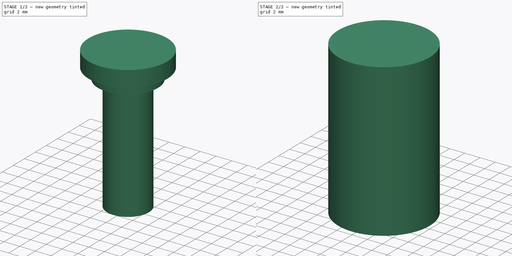
[diagram: build sequence overview — one tinted view per stage of 2, left to right]
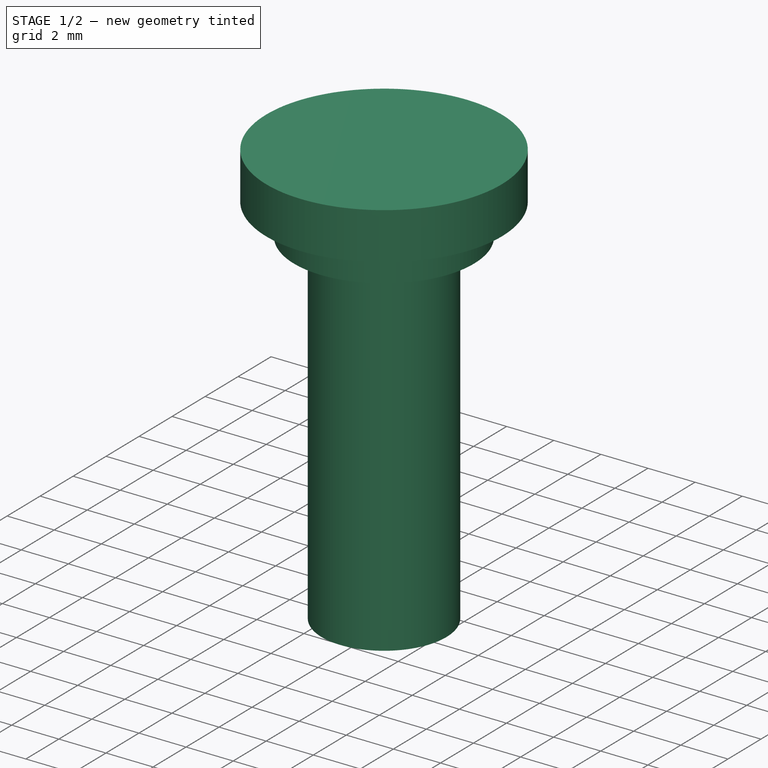
[diagram: stage 1 of 2 — iso view after this stage's code; geometry added in this stage tinted green]
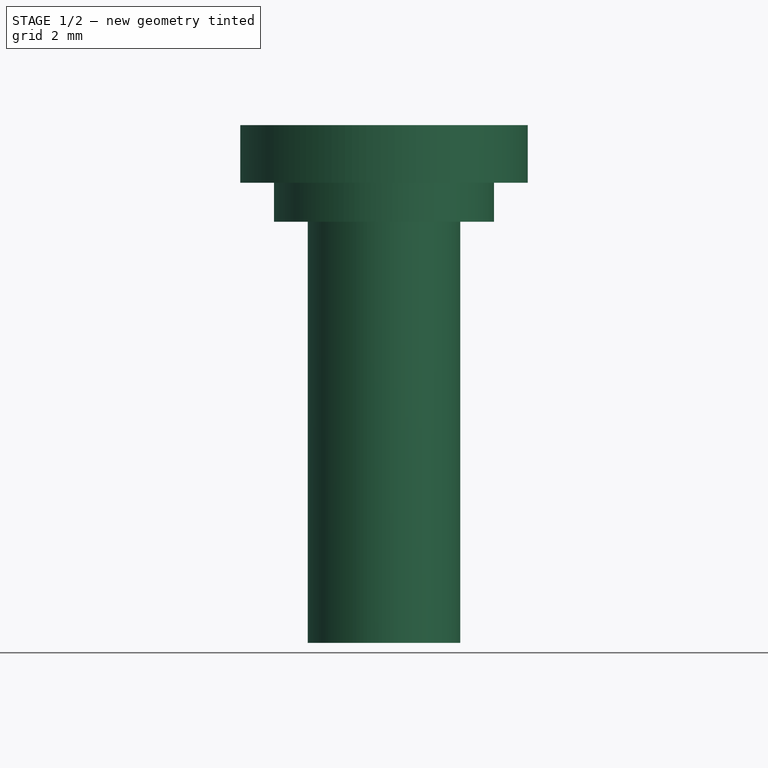
[diagram: stage 1 of 2 — front view after this stage's code; geometry added in this stage tinted green]
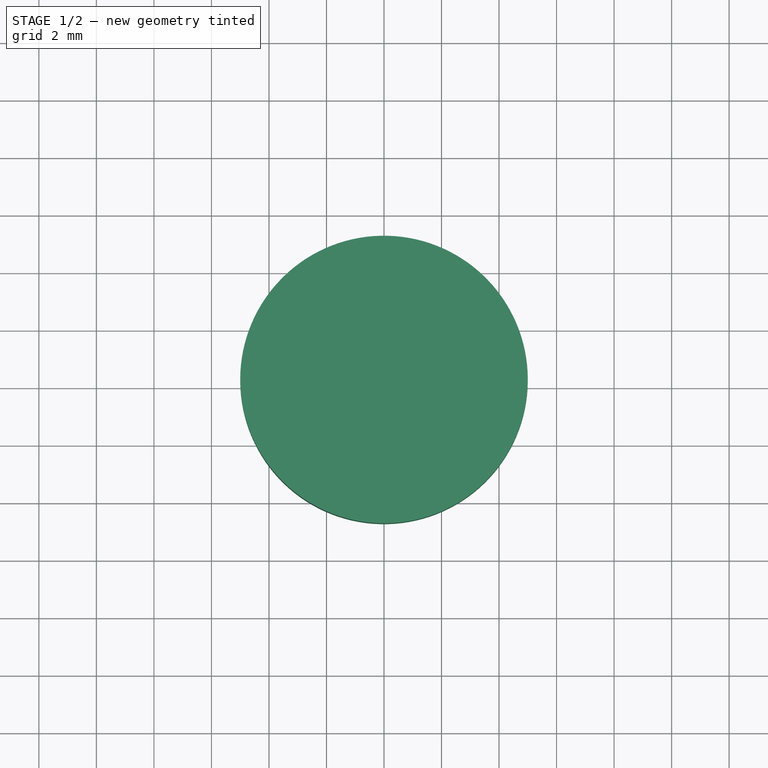
[diagram: stage 1 of 2 — top view after this stage's code; geometry added in this stage tinted green]
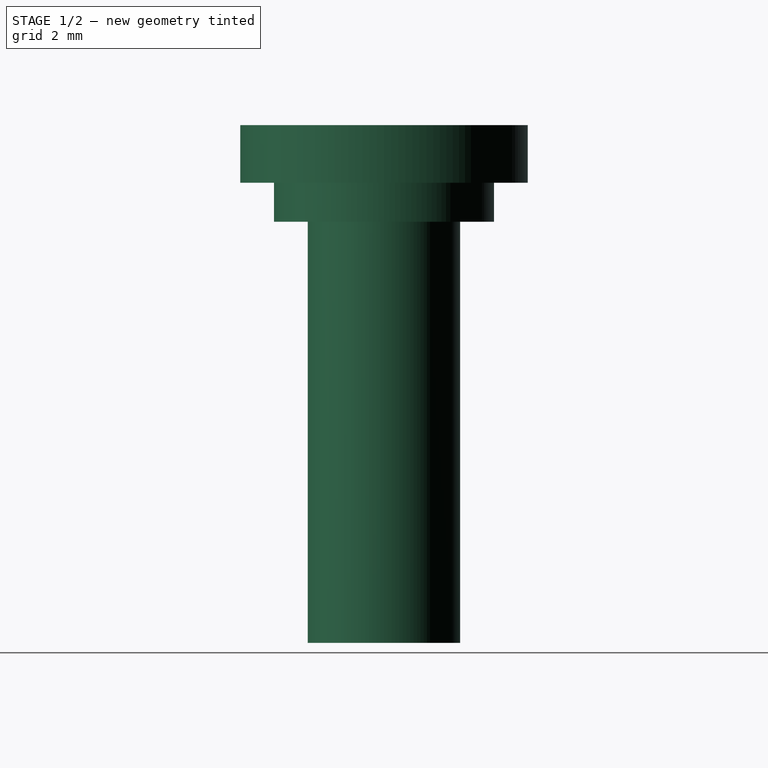
[diagram: stage 1 of 2 — right view after this stage's code; geometry added in this stage tinted green]
FCSTD DOCUMENT  (FreeCAD 1.1R38827 (Git))
Label: composit_stand3_basement_amplifier_main
License: All rights reserved
LicenseURL: http://en.wikipedia.org/wiki/All_rights_reserved
objects: Part::FeaturePython×7, PartDesign::SubShapeBinder×2, Sketcher::SketchObject×2, App::Link×1, Part::Cylinder×1, PartDesign::Revolution×1, PartDesign::Body×1
note: 18 computed .brp shape members not serialized (recipe doc carries the construction recipe); baked Part::Feature solids carry a one-line shape summary decoded from their .brp
EXTERNAL_REF file=composit_stand3_basement_bottom_main.FCStd obj=Sketch
EXTERNAL_REF file=composit_stand3_basement_top_main.FCStd obj=Sketch
EXTERNAL_REF file=composit_stand3_basement_bearing_holder_main.FCStd obj=Join

FEATURE [Sketcher::SketchObject] Sketch001
  ArcFitTolerance = 0
  AttachmentSupport = -> [XZ_Plane]
  FullyConstrained = true
  MakeInternals = false
  MapMode = 5
  Placement = pos=(0,0,0) rot=(1,0,0;1.5708rad)
  sketch-geometry (9):
    g0: LineSegment StartX=0 StartY=0 StartZ=0 EndX=2.65 EndY=0 EndZ=0
    g1: LineSegment StartX=2.65 StartY=0 StartZ=0 EndX=2.65 EndY=14.6432 EndZ=0
    g2: LineSegment StartX=2.65 StartY=14.6432 StartZ=0 EndX=3.825 EndY=14.6432 EndZ=0
    g3: LineSegment StartX=3.825 StartY=14.6432 StartZ=0 EndX=3.825 EndY=16 EndZ=0
    g4: LineSegment StartX=3.825 StartY=16 StartZ=0 EndX=5 EndY=16 EndZ=0
    g5: LineSegment StartX=5 StartY=16 StartZ=0 EndX=5 EndY=18 EndZ=0
    g6: LineSegment StartX=5 StartY=18 StartZ=0 EndX=0 EndY=18 EndZ=0
    g7: LineSegment StartX=0 StartY=18 StartZ=0 EndX=0 EndY=0 EndZ=0
    g8: LineSegment [constr] StartX=2.65 StartY=14.6432 StartZ=0 EndX=5 EndY=16 EndZ=0
  constraints (25):
    c: Coincident(g-1,g0)
    c: PointOnObject(g0,g-1)
    c: Coincident(g0,g1)
    c: Vertical(g1)
    c: Coincident(g1,g2)
    c: Horizontal(g2)
    c: Coincident(g2,g3)
    c: Vertical(g3)
    c: Coincident(g3,g4)
    c: Horizontal(g4)
    c: Coincident(g4,g5)
    c: Vertical(g5)
    c: Coincident(g5,g6)
    c: Horizontal(g6)
    c: Coincident(g6,g7)
    c: Coincident(g7,g0)
    c: Vertical(g7)
    c: DistanceX(g0) = 2.65
    c: Coincident(g8,g1)
    c: Coincident(g8,g4)
    c: Angle(g8) = 0.523599
    c: Equal(g4,g2)
    c: DistanceY(g5,g5) = 2
    c: DistanceX(g5) = 5
    c: DistanceY(g6) = 18
FEATURE [PartDesign::Revolution] Revolution
  Angle = 360
  Angle2 = 60
  Axis = (0,2e-16,1)
  Base = (0,0,0)
  Placement = pos=(0,0,0) rot=(1,0,0;1.5708rad)
  Profile = -> Sketch001
  ReferenceAxis = -> Sketch001 [V_Axis]
  Reversed = true
  Suppressed = false
  Type = 0
FEATURE [PartDesign::Body] Body  label="screw"
  AllowCompound = false
  Group = -> [Sketch001,Revolution]
  Origin = -> Origin
  Tip = -> Revolution
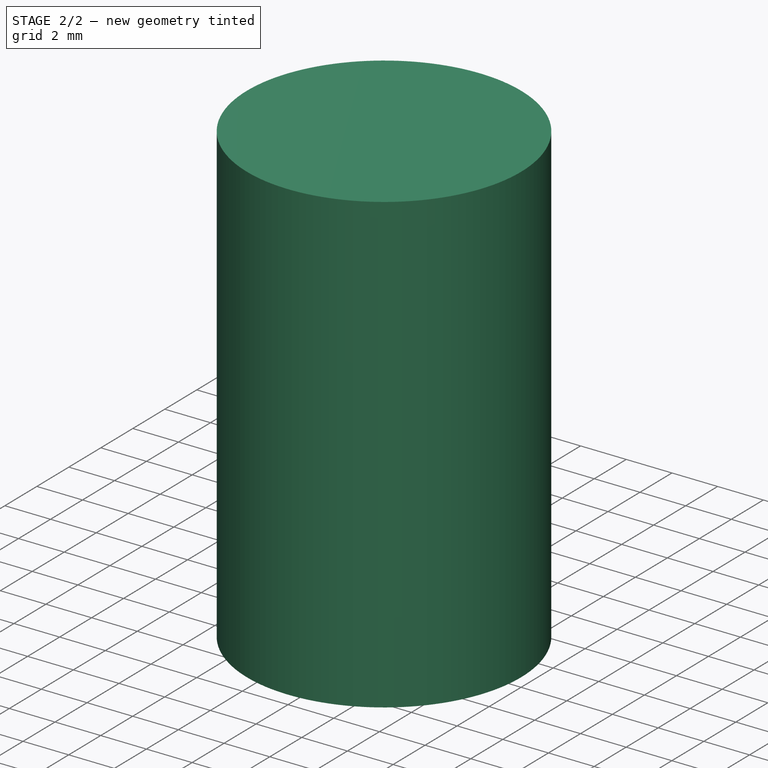
[diagram: stage 2 of 2 — iso view after this stage's code; geometry added in this stage tinted green]
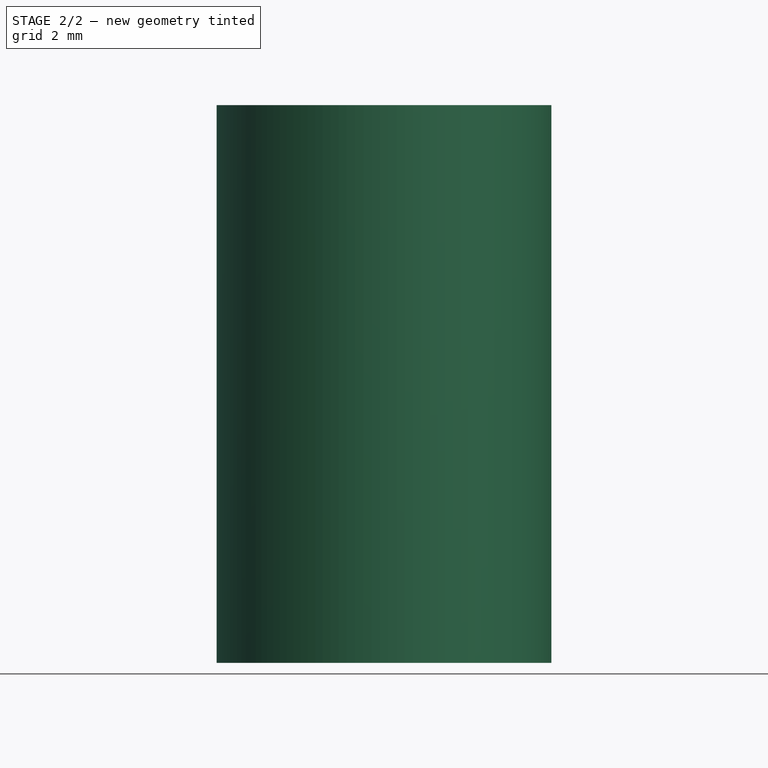
[diagram: stage 2 of 2 — front view after this stage's code; geometry added in this stage tinted green]
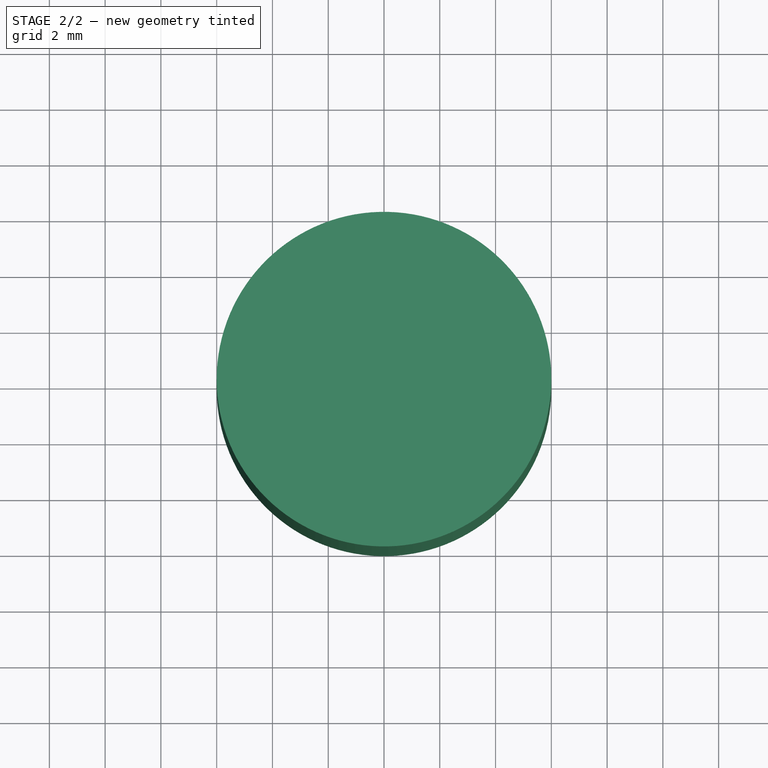
[diagram: stage 2 of 2 — top view after this stage's code; geometry added in this stage tinted green]
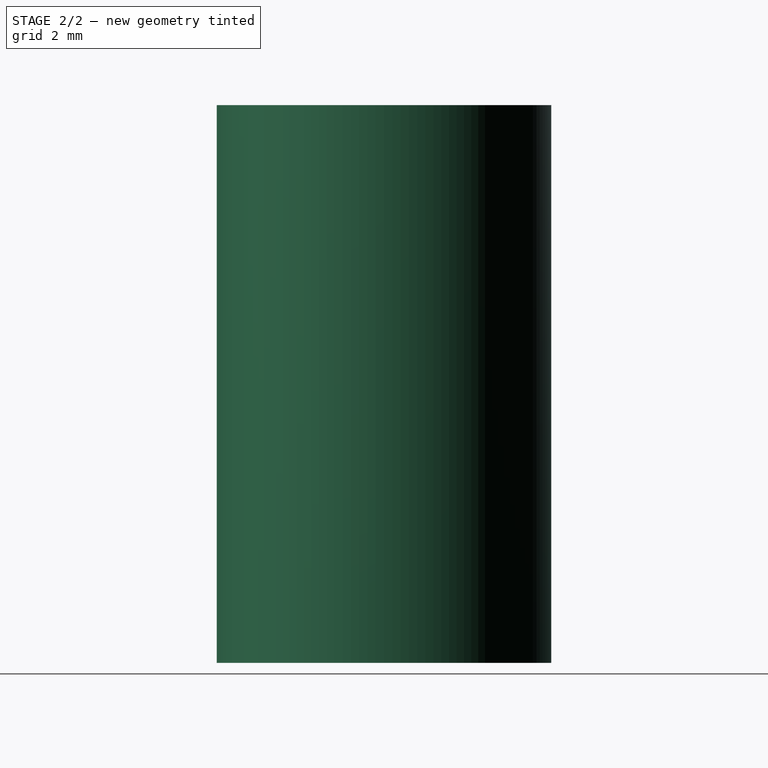
[diagram: stage 2 of 2 — right view after this stage's code; geometry added in this stage tinted green]
FEATURE [PartDesign::SubShapeBinder] Binder
  BindCopyOnChange = 0
  BindMode = 0
  ClaimChildren = false
  Fuse = false
  MakeFace = true
  OffsetFill = false
  OffsetIntersection = false
  OffsetJoinType = 0
  OffsetOpenResult = false
  PartialLoad = false
  Relative = true
  Support = -> [<external composit_stand3_basement_bottom_main.FCStd>#Sketch]
  _Version = 2
FEATURE [PartDesign::SubShapeBinder] Binder001
  BindCopyOnChange = 0
  BindMode = 0
  ClaimChildren = false
  Fuse = false
  MakeFace = true
  OffsetFill = false
  OffsetIntersection = false
  OffsetJoinType = 0
  OffsetOpenResult = false
  PartialLoad = false
  Relative = true
  Support = -> [<external composit_stand3_basement_top_main.FCStd>#Sketch]
  _Version = 2
FEATURE [Sketcher::SketchObject] Sketch
  ArcFitTolerance = 0
  ExternalGeometry = -> [Binder001]
  FullyConstrained = true
  MakeInternals = false
  expr: Constraints[6] = <<composit_stand3_basement_bottom_main>>#<<basement_bottom_main_sketch>>.Constraints.min_r - 20 mm
  sketch-geometry (5):
    g0: LineSegment [constr] StartX=0 StartY=0 StartZ=0 EndX=75 EndY=129.904 EndZ=0
    g1: ArcOfCircle CenterX=-272.703 CenterY=-472.335 CenterZ=0 NormalX=0 NormalY=0 NormalZ=1 AngleXU=0 Radius=695.406 StartAngle=0.871298 EndAngle=1.0472
    g2: ArcOfCircle CenterX=155.708 CenterY=36.8099 CenterZ=0 NormalX=0 NormalY=0 NormalZ=1 AngleXU=0 Radius=30 StartAngle=0.232142 EndAngle=0.871298
    g3: ArcOfCircle CenterX=0 CenterY=0 CenterZ=0 NormalX=0 NormalY=0 NormalZ=1 AngleXU=0 Radius=190 StartAngle=0 EndAngle=0.232142
    g4: Circle [constr] CenterX=0 CenterY=0 CenterZ=0 NormalX=0 NormalY=0 NormalZ=1 AngleXU=0 Radius=545.406
  constraints (14):
    c: Coincident(g0,g-1)
    c: Angle(g0) = 1.0472
    c: Coincident(g1,g0)
    c: PointOnObject(g3,g-1)
    c: Tangent(g3,g2) = -1.5708
    c: Tangent(g2,g1) = -1.5708
    c: Distance(g0) = 150
    c: Coincident(g4,g0)
    c: PointOnObject(g-3,g4)
    c: Coincident(g1,g-3)
    c: DistanceX(g3) = 190
    c: Radius(g2) = 30
    c: PointOnObject(g3,g-1)
    c: PointOnObject(g3,g-2)
FEATURE [Part::FeaturePython] Placment  # WARN: FeaturePython — macro-defined, semantics opaque (R4)
  AttacherType = Attacher::AttachEngine3D
  ExposePlacement = true
  MarkerShape = 1
  MarkerSize = 20
  NumElements = 1
  Placement = pos=(65,112.583,0) rot=(0,0,1;0rad)
  Type = lattice2AttachablePlacement.AttachablePlacement
  isLattice = 1
  expr: .Placement.Base.y = .Placement.Base.x * tan(60)
FEATURE [Part::FeaturePython] Placment001  # WARN: FeaturePython — macro-defined, semantics opaque (R4)
  AttacherType = Attacher::AttachEngine3D
  ExposePlacement = true
  MarkerShape = 1
  MarkerSize = 20
  NumElements = 1
  Placement = pos=(150,40,0) rot=(0,0,1;0rad)
  Type = lattice2AttachablePlacement.AttachablePlacement
  isLattice = 1
FEATURE [Part::FeaturePython] Mirror  label="Mirror of Placment001"  # WARN: FeaturePython — macro-defined, semantics opaque (R4)
  ExposePlacement = false
  FlipX = false
  FlipY = true
  FlipZ = false
  MarkerShape = 1
  MarkerSize = 20
  NumElements = 1
  Object = -> Placment001
  ObjectTraversal = 0
  PivotPlacement = pos=(0,0,0) rot=(0,0,1;1.0472rad)
  Type = lattice2Mirror.LatticeMirror
  isLattice = 1
FEATURE [Part::FeaturePython] Join  # WARN: FeaturePython — macro-defined, semantics opaque (R4)
  ExposePlacement = false
  Interleave = false
  Links = -> [Placment,Placment001,Mirror]
  MarkerShape = 1
  MarkerSize = 0
  NumElements = 3
  Type = lattice2JoinArrays.JoinArrays
  isLattice = 1
FEATURE [Part::FeaturePython] PolarArray  # WARN: FeaturePython — macro-defined, semantics opaque (R4)
  Alignment = 0
  AttacherType = Attacher::AttachEngine3D
  CellStart = A1
  Count = 3
  DistributionLaw = 0
  EndInclusive = false
  ExposePlacement = false
  FlipX = false
  FlipZ = false
  GeneratorMode = 0
  MarkerShape = 1
  MarkerSize = 0
  NumElements = 3
  OrientMode = 2
  Radius = 100
  Reverse = false
  SpanEnd = 360
  SpanStart = 0
  Step = 120
  Type = lattice2PolarArray2.PolarArray
  UseArcRadius = false
  UseArcRange = 0
  VSGVersion = 1
  Values = 0.0 | 120.0 | 240.0
  ValuesSource = 2
  isLattice = 1
FEATURE [Part::FeaturePython] Populate  label="Populate PolarArray with Join"  # WARN: FeaturePython — macro-defined, semantics opaque (R4)
  Copying = 0
  ExposePlacement = false
  MarkerShape = 1
  MarkerSize = 0
  NumElements = 9
  Object = -> Join
  OutputCompounding = 0
  PlacementsTo = -> PolarArray
  Referencing = 1
  Type = lattice2PopulateCopies.LatticePopulateCopies
  isLattice = 1
FEATURE [App::Link] Link  label="bearing_holes_placements"
  LinkedObject = -> <external composit_stand3_basement_bearing_holder_main.FCStd>#Join
FEATURE [Part::FeaturePython] Join001  label="holes_placements"  # WARN: FeaturePython — macro-defined, semantics opaque (R4)
  ExposePlacement = false
  Interleave = false
  Links = -> [Populate,Link]
  MarkerShape = 1
  MarkerSize = 0
  NumElements = 14
  Type = lattice2JoinArrays.JoinArrays
  isLattice = 1
FEATURE [Part::Cylinder] Cylinder  label="axis_bolt"
  Angle = 360
  AttacherType = Attacher::AttachEngine3D
  FirstAngle = 0
  Height = 20
  Radius = 6
  SecondAngle = 0
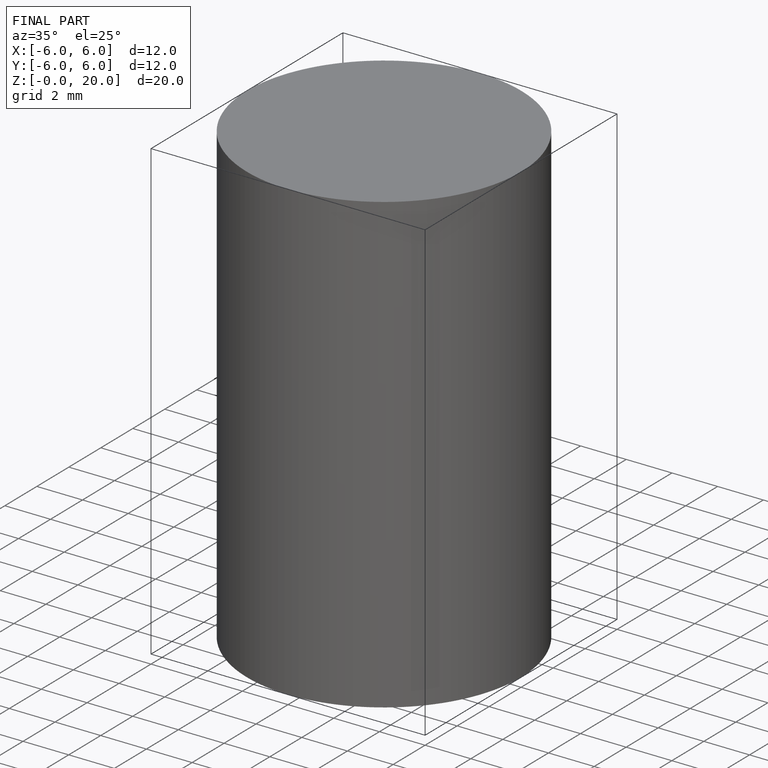
[diagram: finished part — iso view with bounding-box wireframe]
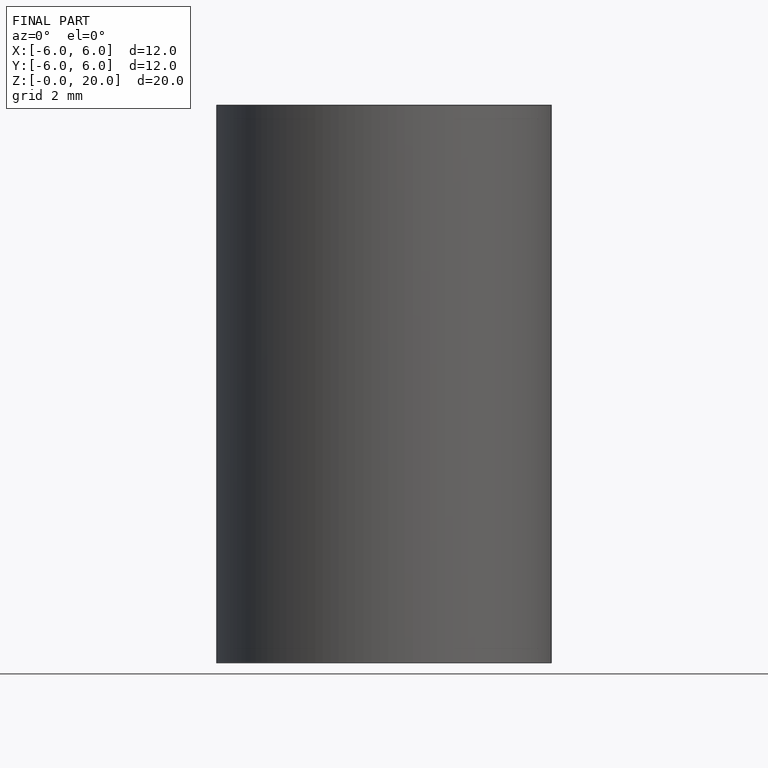
[diagram: finished part — front view with bounding-box wireframe]
